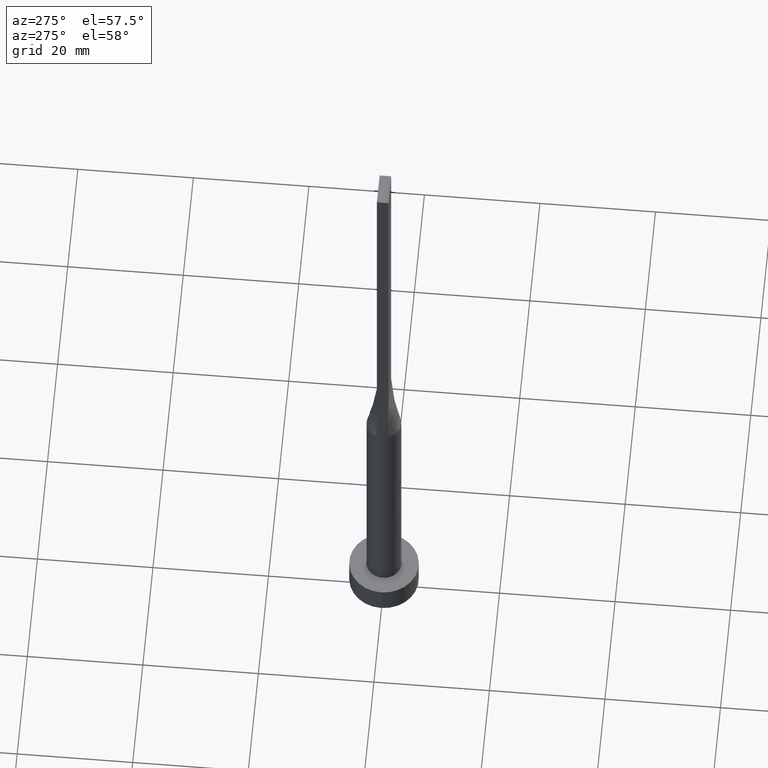
[diagram: clean part render]
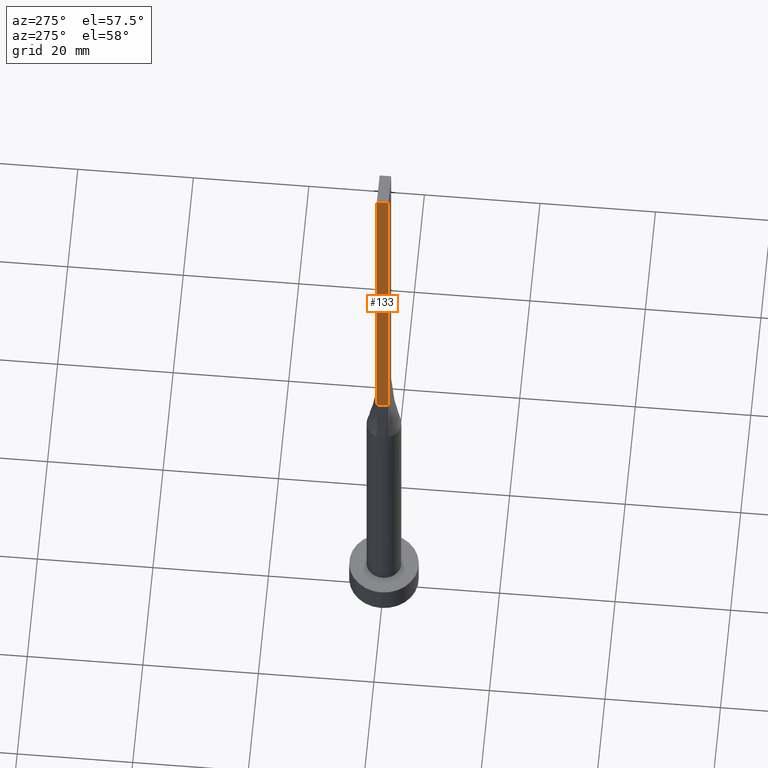
[diagram: same view with one face highlighted and labeled with its STEP entity id]
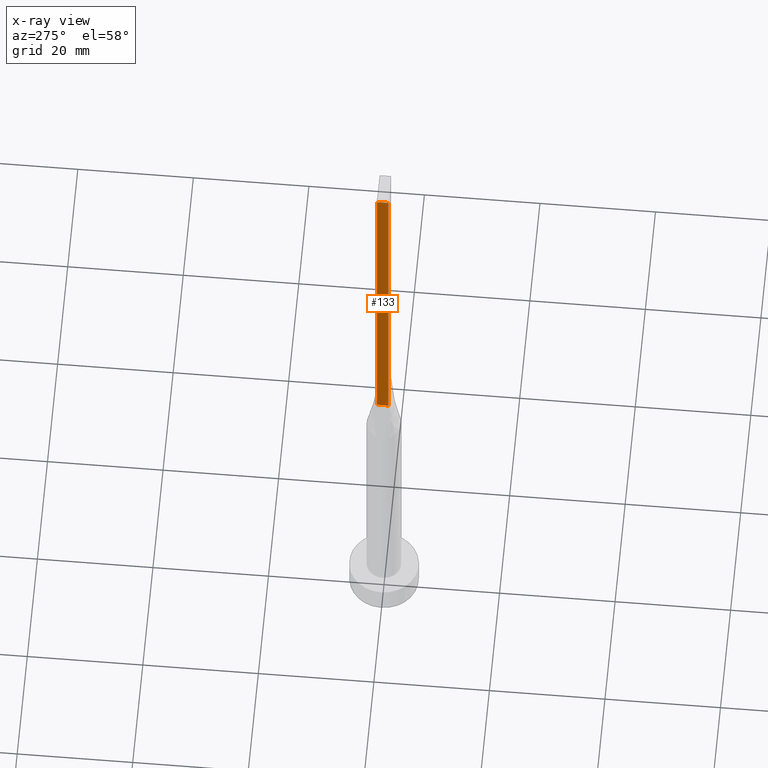
[diagram: x-ray of the same camera — body ghosted, the highlighted face saturated]
A machine part, auxiliary view. The second image highlights one B-rep face of the part: STEP entity #133.
The next image is the same camera in x-ray: the body ghosted, the highlighted face saturated — about 0% of this face is hidden behind the body in this view.
In plain terms, the highlighted planar face has unit normal (1, -0, 0).
Its self-contained STEP definition (entity closure, byte-faithful):
#23 = EDGE_CURVE ( 'NONE', #433, #43, #74, .T. ) ;
#33 = CARTESIAN_POINT ( 'NONE',  ( -2.749999999999999556, 1.000000000000000000, 60.00000000000000000 ) ) ;
#43 = VERTEX_POINT ( 'NONE', #288 ) ;
#68 = EDGE_CURVE ( 'NONE', #495, #306, #481, .T. ) ;
#74 = LINE ( 'NONE', #379, #568 ) ;
#79 = VECTOR ( 'NONE', #359, 1000.000000000000000 ) ;
#92 = ORIENTED_EDGE ( 'NONE', *, *, #23, .T. ) ;
#110 = EDGE_CURVE ( 'NONE', #306, #43, #506, .T. ) ;
#118 = CARTESIAN_POINT ( 'NONE',  ( -2.749999999999999556, 1.000000000000000000, 125.0000000000000000 ) ) ;
#133 = ADVANCED_FACE ( 'NONE', ( #407 ), #266, .F. ) ;
#192 = DIRECTION ( 'NONE',  ( -0.000000000000000000, -0.000000000000000000, -1.000000000000000000 ) ) ;
#193 = ORIENTED_EDGE ( 'NONE', *, *, #68, .F. ) ;
#222 = LINE ( 'NONE', #410, #328 ) ;
#225 = EDGE_CURVE ( 'NONE', #495, #433, #222, .T. ) ;
#245 = AXIS2_PLACEMENT_3D ( 'NONE', #362, #548, #555 ) ;
#252 = ORIENTED_EDGE ( 'NONE', *, *, #110, .F. ) ;
#266 = PLANE ( 'NONE',  #245 ) ;
#276 = ORIENTED_EDGE ( 'NONE', *, *, #225, .T. ) ;
#288 = CARTESIAN_POINT ( 'NONE',  ( -2.750000000000000000, -0.9999999999999993339, 60.00000000000000000 ) ) ;
#292 = EDGE_LOOP ( 'NONE', ( #92, #252, #193, #276 ) ) ;
#306 = VERTEX_POINT ( 'NONE', #563 ) ;
#328 = VECTOR ( 'NONE', #363, 1000.000000000000000 ) ;
#334 = DIRECTION ( 'NONE',  ( -2.168404344971009854E-16, -1.000000000000000000, 0.000000000000000000 ) ) ;
#338 = VECTOR ( 'NONE', #192, 1000.000000000000000 ) ;
#359 = DIRECTION ( 'NONE',  ( -2.168404344971009854E-16, -1.000000000000000000, 0.000000000000000000 ) ) ;
#362 = CARTESIAN_POINT ( 'NONE',  ( -2.749999999999999556, 1.000000000000000000, 125.0000000000000000 ) ) ;
#363 = DIRECTION ( 'NONE',  ( -0.000000000000000000, -0.000000000000000000, -1.000000000000000000 ) ) ;
#379 = CARTESIAN_POINT ( 'NONE',  ( -2.749999999999999556, 1.000000000000000000, 60.00000000000000000 ) ) ;
#407 = FACE_OUTER_BOUND ( 'NONE', #292, .T. ) ;
#410 = CARTESIAN_POINT ( 'NONE',  ( -2.749999999999999556, 1.000000000000000000, 125.0000000000000000 ) ) ;
#416 = CARTESIAN_POINT ( 'NONE',  ( -2.750000000000000000, -0.9999999999999993339, 125.0000000000000000 ) ) ;
#433 = VERTEX_POINT ( 'NONE', #33 ) ;
#463 = CARTESIAN_POINT ( 'NONE',  ( -2.749999999999999556, 1.000000000000000000, 125.0000000000000000 ) ) ;
#481 = LINE ( 'NONE', #463, #79 ) ;
#495 = VERTEX_POINT ( 'NONE', #118 ) ;
#506 = LINE ( 'NONE', #416, #338 ) ;
#548 = DIRECTION ( 'NONE',  ( 1.000000000000000000, -2.168404344971009608E-16, 0.000000000000000000 ) ) ;
#555 = DIRECTION ( 'NONE',  ( 2.168404344971009608E-16, 1.000000000000000000, 0.000000000000000000 ) ) ;
#563 = CARTESIAN_POINT ( 'NONE',  ( -2.750000000000000000, -0.9999999999999993339, 125.0000000000000000 ) ) ;
#568 = VECTOR ( 'NONE', #334, 1000.000000000000000 ) ;